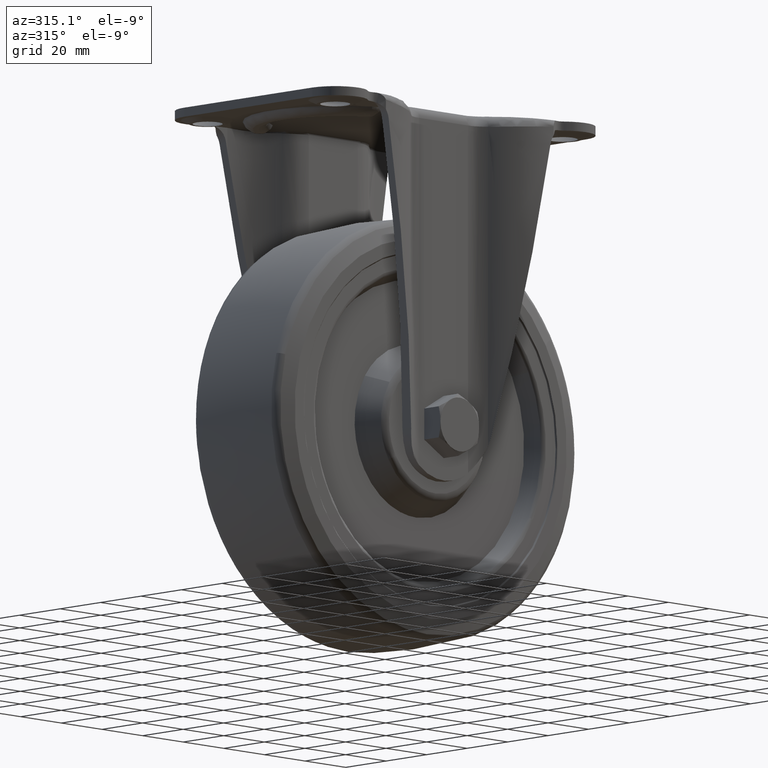
[diagram: clean part render]
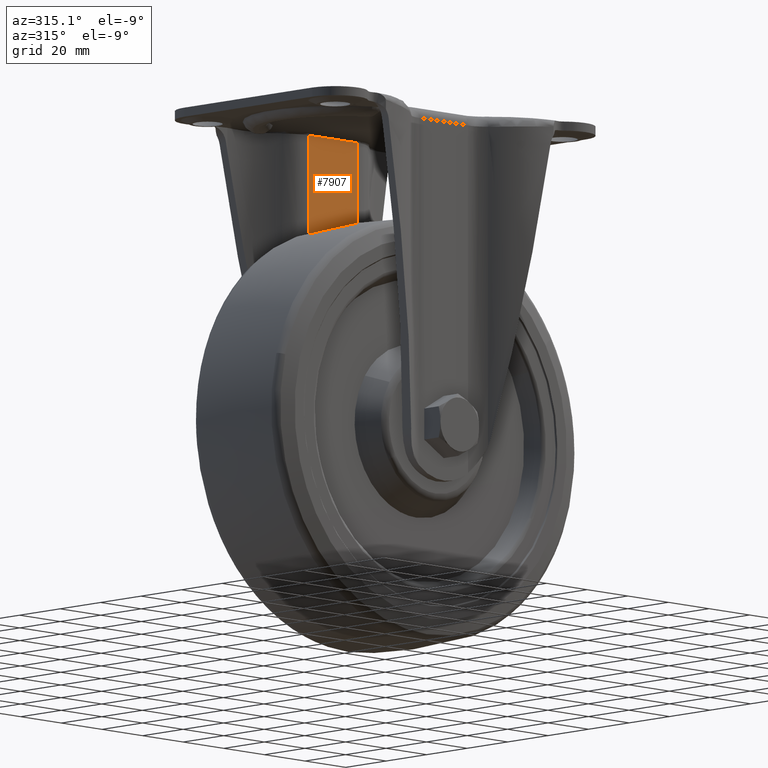
[diagram: same view with one face highlighted and labeled with its STEP entity id]
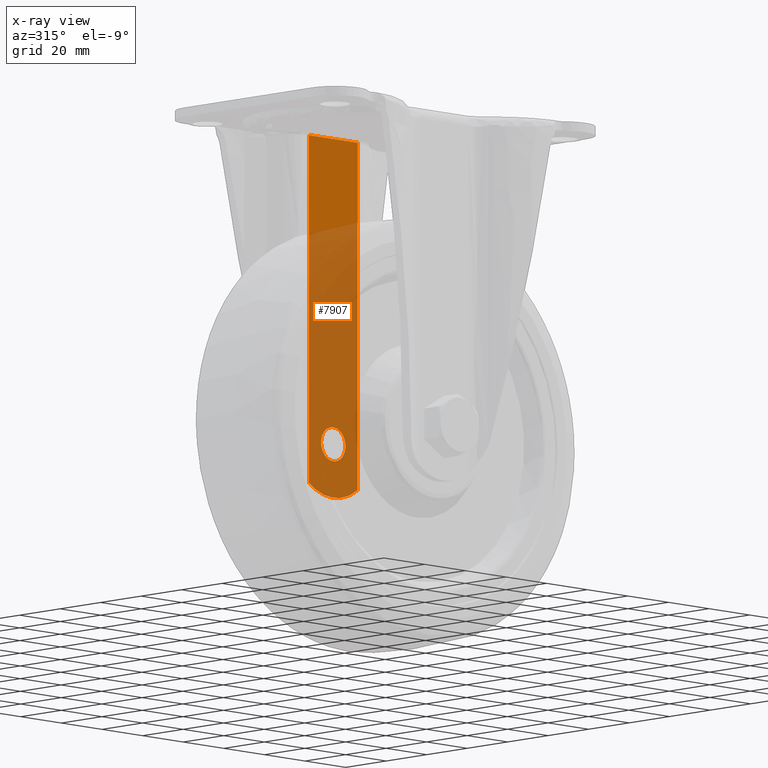
[diagram: x-ray of the same camera — body ghosted, the highlighted face saturated]
A machine part, auxiliary view. The second image highlights one B-rep face of the part: STEP entity #7907.
The next image is the same camera in x-ray: the body ghosted, the highlighted face saturated — about 74% of this face is hidden behind the body in this view.
In plain terms, the highlighted face is a freeform B-spline surface patch.
Its self-contained STEP definition (entity closure, byte-faithful):
#4978=CARTESIAN_POINT('',(0.052359213876208,25.650000502181630,-117.999771538377300));
#4979=VERTEX_POINT('',#4978);
#4985=CARTESIAN_POINT('',(5.999999999999995,25.650000749999968,-112.0));
#4986=VERTEX_POINT('',#4985);
#4987=CARTESIAN_POINT('',(5.999999999999995,25.650000749999968,-112.0));
#4988=CARTESIAN_POINT('',(5.999999999999996,25.650000749999968,-117.947867262691560));
#4989=CARTESIAN_POINT('',(0.052359213876206,25.650000502181634,-117.999771538377260));
#4997=(BOUNDED_CURVE()B_SPLINE_CURVE(2,(#4987,#4988,#4989),.UNSPECIFIED.,.F.,.U.)B_SPLINE_CURVE_WITH_KNOTS((3,3),(0.500000000000000,0.748460105639003),.UNSPECIFIED.)CURVE()GEOMETRIC_REPRESENTATION_ITEM()RATIONAL_B_SPLINE_CURVE((1.0,0.708910879650648,0.996414028040211))REPRESENTATION_ITEM(''));
#4998=EDGE_CURVE('',#4986,#4979,#4997,.T.);
#5000=CARTESIAN_POINT('',(-0.052359213876209,25.650000497818372,-106.000228461622700));
#5001=VERTEX_POINT('',#5000);
#5002=CARTESIAN_POINT('',(-0.052359213876208,25.650000497818361,-106.000228461622650));
#5003=CARTESIAN_POINT('',(-0.026180105367217,25.650000498909165,-106.000000000000010));
#5004=CARTESIAN_POINT('',(0.0,25.650000500000001,-106.0));
#5005=CARTESIAN_POINT('',(5.999999999999996,25.650000749999972,-106.0));
#5006=CARTESIAN_POINT('',(5.999999999999995,25.650000749999968,-112.0));
#5014=(BOUNDED_CURVE()B_SPLINE_CURVE(2,(#5002,#5003,#5004,#5005,#5006),.UNSPECIFIED.,.F.,.U.)B_SPLINE_CURVE_WITH_KNOTS((3,2,3),(0.248460105639003,0.250000000000000,0.500000000000000),.UNSPECIFIED.)CURVE()GEOMETRIC_REPRESENTATION_ITEM()RATIONAL_B_SPLINE_CURVE((0.996414028040211,0.998195901535899,1.0,0.707106781186548,1.0))REPRESENTATION_ITEM(''));
#5015=EDGE_CURVE('',#5001,#4986,#5014,.T.);
#5091=CARTESIAN_POINT('',(-5.999999999999995,25.650000250000030,-112.0));
#5092=VERTEX_POINT('',#5091);
#5093=CARTESIAN_POINT('',(-5.999999999999995,25.650000250000030,-112.0));
#5094=CARTESIAN_POINT('',(-5.999999999999995,25.650000250000016,-106.052132737308470));
#5095=CARTESIAN_POINT('',(-0.052359213876208,25.650000497818361,-106.000228461622650));
#5103=(BOUNDED_CURVE()B_SPLINE_CURVE(2,(#5093,#5094,#5095),.UNSPECIFIED.,.F.,.U.)B_SPLINE_CURVE_WITH_KNOTS((3,3),(0.0,0.248460105639003),.UNSPECIFIED.)CURVE()GEOMETRIC_REPRESENTATION_ITEM()RATIONAL_B_SPLINE_CURVE((1.0,0.708910879650649,0.996414028040211))REPRESENTATION_ITEM(''));
#5104=EDGE_CURVE('',#5092,#5001,#5103,.T.);
#5106=CARTESIAN_POINT('',(0.052359213876206,25.650000502181634,-117.999771538377260));
#5107=CARTESIAN_POINT('',(0.026180105367216,25.650000501090837,-118.000000000000010));
#5108=CARTESIAN_POINT('',(0.0,25.650000500000001,-118.0));
#5109=CARTESIAN_POINT('',(-5.999999999999996,25.650000250000030,-118.000000000000010));
#5110=CARTESIAN_POINT('',(-5.999999999999995,25.650000250000030,-112.0));
#5118=(BOUNDED_CURVE()B_SPLINE_CURVE(2,(#5106,#5107,#5108,#5109,#5110),.UNSPECIFIED.,.F.,.U.)B_SPLINE_CURVE_WITH_KNOTS((3,2,3),(0.748460105639003,0.750000000000000,1.0),.UNSPECIFIED.)CURVE()GEOMETRIC_REPRESENTATION_ITEM()RATIONAL_B_SPLINE_CURVE((0.996414028040211,0.998195901535899,1.0,0.707106781186548,1.0))REPRESENTATION_ITEM(''));
#5119=EDGE_CURVE('',#4979,#5092,#5118,.T.);
#7858=CARTESIAN_POINT('',(13.197542695112400,25.650001049897469,-137.228372893885900));
#7859=CARTESIAN_POINT('',(-13.197540860444221,25.649999950102440,-137.228372893885900));
#7860=CARTESIAN_POINT('',(13.197542695112400,25.650001049897469,2.128654267898430));
#7861=CARTESIAN_POINT('',(-13.197540860444221,25.649999950102440,2.128654267898430));
#7862=B_SPLINE_SURFACE_WITH_KNOTS('',1,1,((#7858,#7860),(#7859,#7861)),.UNSPECIFIED.,.F.,.F.,.U.,(2,2),(2,2),(0.0,26.395083555556639),(0.0,139.357027161784290),.UNSPECIFIED.);
#7863=CARTESIAN_POINT('',(11.998857046474720,25.650000999952301,-126.852448361401400));
#7864=VERTEX_POINT('',#7863);
#7865=CARTESIAN_POINT('',(11.998857046474720,25.650000999952251,-4.200000000000000));
#7866=VERTEX_POINT('',#7865);
#7867=CARTESIAN_POINT('',(11.998857046474720,25.650000999952301,-126.852448361401400));
#7868=CARTESIAN_POINT('',(11.998857046474720,25.650000999952251,-4.200000000000000));
#7869=QUASI_UNIFORM_CURVE('',1,(#7867,#7868),.UNSPECIFIED.,.F.,.U.);
#7870=EDGE_CURVE('',#7864,#7866,#7869,.T.);
#7871=ORIENTED_EDGE('',*,*,#7870,.T.);
#7872=CARTESIAN_POINT('',(-11.998854568137761,25.650000000047701,-4.200000000000000));
#7873=VERTEX_POINT('',#7872);
#7874=CARTESIAN_POINT('',(11.998857046474720,25.650000999952251,-4.200000000000000));
#7875=CARTESIAN_POINT('',(-11.998854568137761,25.650000000047701,-4.200000000000000));
#7876=QUASI_UNIFORM_CURVE('',1,(#7874,#7875),.UNSPECIFIED.,.F.,.U.);
#7877=EDGE_CURVE('',#7866,#7873,#7876,.T.);
#7878=ORIENTED_EDGE('',*,*,#7877,.T.);
#7879=CARTESIAN_POINT('',(-11.998854568137761,25.650000000047701,-126.852449486736600));
#7880=VERTEX_POINT('',#7879);
#7881=CARTESIAN_POINT('',(-11.998854568137761,25.650000000047701,-126.852449486736600));
#7882=CARTESIAN_POINT('',(-11.998854568137761,25.650000000047701,-4.200000000000000));
#7883=QUASI_UNIFORM_CURVE('',1,(#7881,#7882),.UNSPECIFIED.,.F.,.U.);
#7884=EDGE_CURVE('',#7880,#7873,#7883,.T.);
#7885=ORIENTED_EDGE('',*,*,#7884,.F.);
#7886=CARTESIAN_POINT('',(11.998857046474720,25.650000999952301,-126.852448361401400));
#7887=CARTESIAN_POINT('',(0.000001667480637,25.650000500000051,-135.986182040195870));
#7888=CARTESIAN_POINT('',(-11.998854568137780,25.650000000047768,-126.852449486736700));
#7896=(BOUNDED_CURVE()B_SPLINE_CURVE(2,(#7886,#7887,#7888),.UNSPECIFIED.,.F.,.U.)CURVE()GEOMETRIC_REPRESENTATION_ITEM()QUASI_UNIFORM_CURVE()RATIONAL_B_SPLINE_CURVE((1.0,0.795695451778396,1.0))REPRESENTATION_ITEM(''));
#7897=EDGE_CURVE('',#7864,#7880,#7896,.T.);
#7898=ORIENTED_EDGE('',*,*,#7897,.F.);
#7899=EDGE_LOOP('',(#7871,#7878,#7885,#7898));
#7900=FACE_OUTER_BOUND('',#7899,.T.);
#7901=ORIENTED_EDGE('',*,*,#5104,.T.);
#7902=ORIENTED_EDGE('',*,*,#5015,.T.);
#7903=ORIENTED_EDGE('',*,*,#4998,.T.);
#7904=ORIENTED_EDGE('',*,*,#5119,.T.);
#7905=EDGE_LOOP('',(#7901,#7902,#7903,#7904));
#7906=FACE_BOUND('',#7905,.T.);
#7907=ADVANCED_FACE('',(#7900,#7906),#7862,.F.);